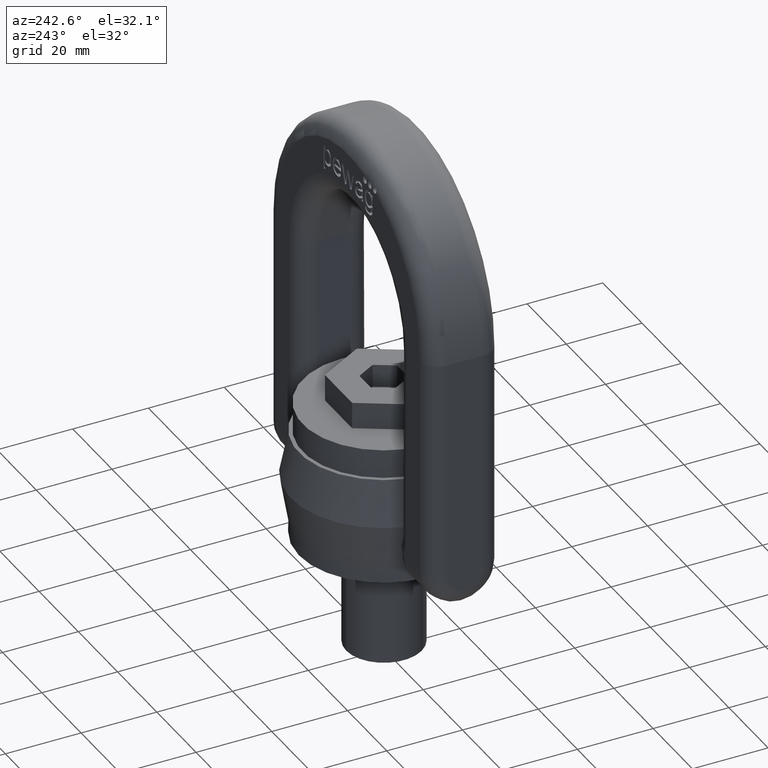
[diagram: clean part render]
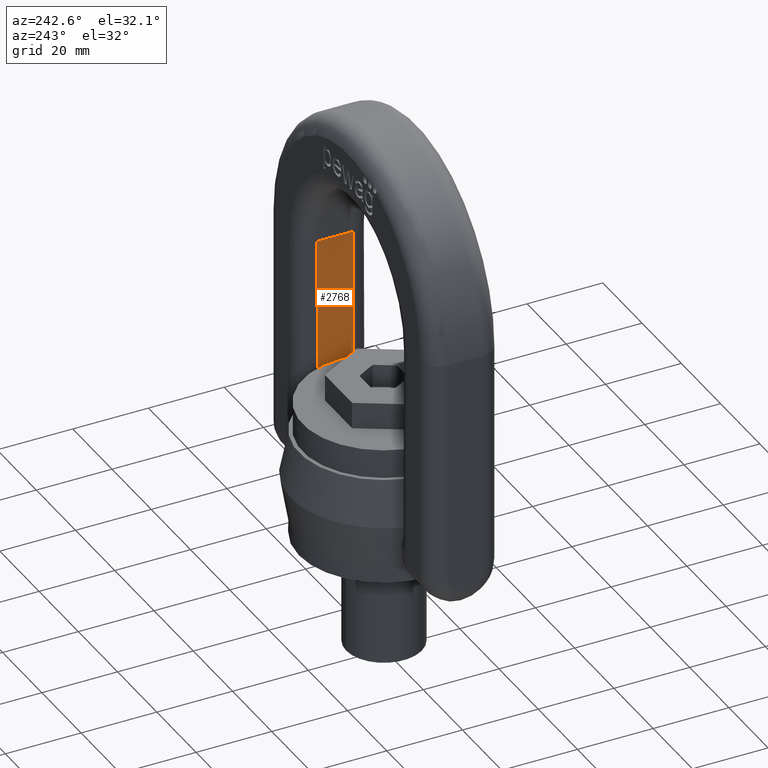
[diagram: same view with one face highlighted and labeled with its STEP entity id]
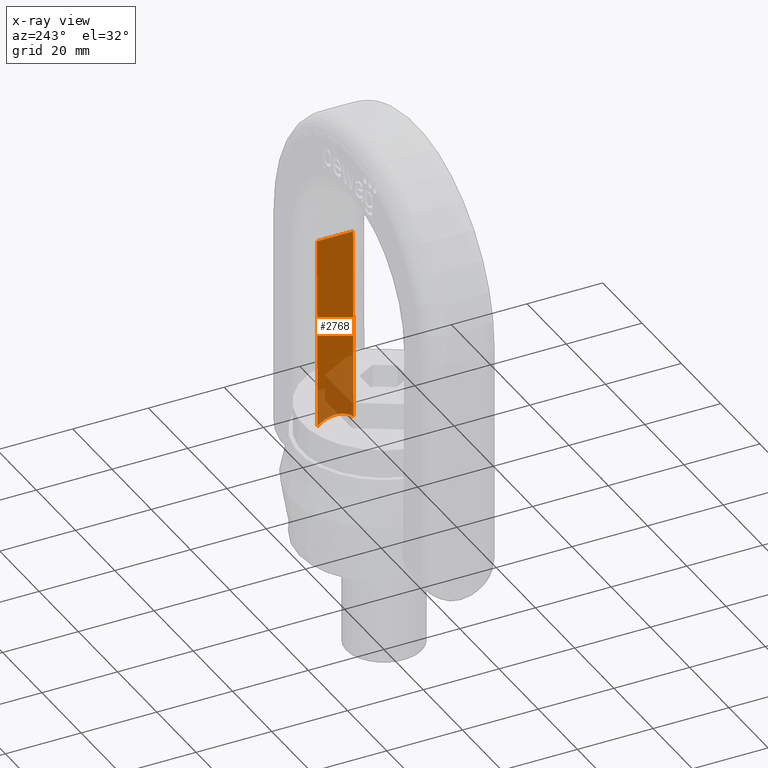
[diagram: x-ray of the same camera — body ghosted, the highlighted face saturated]
A machine part, auxiliary view. The second image highlights one B-rep face of the part: STEP entity #2768.
The next image is the same camera in x-ray: the body ghosted, the highlighted face saturated — about 27% of this face is hidden behind the body in this view.
In plain terms, the highlighted planar face has unit normal (1, 0, -0.0058).
Its self-contained STEP definition (entity closure, byte-faithful):
#312=ELLIPSE('',#5652,7.12512164632153,7.125);
#1837=LINE('',#7067,#2119);
#1838=LINE('',#7071,#2120);
#1839=LINE('',#7075,#2121);
#2119=VECTOR('',#5988,1.);
#2120=VECTOR('',#5993,1.);
#2121=VECTOR('',#5996,1.);
#2430=FACE_OUTER_BOUND('',#3107,.T.);
#2646=PLANE('',#5653);
#2768=ADVANCED_FACE('',(#2430),#2646,.F.);
#3107=EDGE_LOOP('',(#3528,#3529,#3530,#3531));
#3528=ORIENTED_EDGE('',*,*,#5083,.T.);
#3529=ORIENTED_EDGE('',*,*,#5085,.T.);
#3530=ORIENTED_EDGE('',*,*,#5086,.F.);
#3531=ORIENTED_EDGE('',*,*,#5087,.T.);
#4668=VERTEX_POINT('',#7066);
#4669=VERTEX_POINT('',#7068);
#4670=VERTEX_POINT('',#7072);
#4671=VERTEX_POINT('',#7074);
#5083=EDGE_CURVE('',#4669,#4668,#1837,.T.);
#5085=EDGE_CURVE('',#4668,#4670,#1838,.T.);
#5086=EDGE_CURVE('',#4671,#4670,#312,.T.);
#5087=EDGE_CURVE('',#4671,#4669,#1839,.T.);
#5652=AXIS2_PLACEMENT_3D('',#7073,#5994,#5995);
#5653=AXIS2_PLACEMENT_3D('',#7076,#5997,#5998);
#5988=DIRECTION('',(0.,1.,0.));
#5993=DIRECTION('',(-0.00584341179519027,1.36905921898809E-17,-0.999982927123555));
#5994=DIRECTION('',(-0.999982927123555,0.,0.00584341179519027));
#5995=DIRECTION('',(-0.00584341179519027,0.,-0.999982927123555));
#5996=DIRECTION('',(0.00584341179519027,0.,0.999982927123555));
#5997=DIRECTION('',(0.999982927123555,0.,-0.00584341179519027));
#5998=DIRECTION('',(-0.00584341179519027,0.,-0.999982927123555));
#7066=CARTESIAN_POINT('',(24.9995731780889,4.74999999999993,67.8539147051202));
#7067=CARTESIAN_POINT('',(24.9995731780889,-9.5,67.8539147051202));
#7068=CARTESIAN_POINT('',(24.9995731780889,-4.75,67.8539147051202));
#7071=CARTESIAN_POINT('',(24.9995731780889,4.74999999999993,67.8539147051202));
#7072=CARTESIAN_POINT('',(24.7014474253637,4.74999999999994,16.8356614465621));
#7073=CARTESIAN_POINT('',(24.6704145138055,0.,11.525));
#7074=CARTESIAN_POINT('',(24.7014474253637,-4.75,16.835661446562));
#7075=CARTESIAN_POINT('',(24.9995731780889,-4.75,67.8539147051202));
#7076=CARTESIAN_POINT('',(24.9995731780889,-9.5,67.8539147051202));